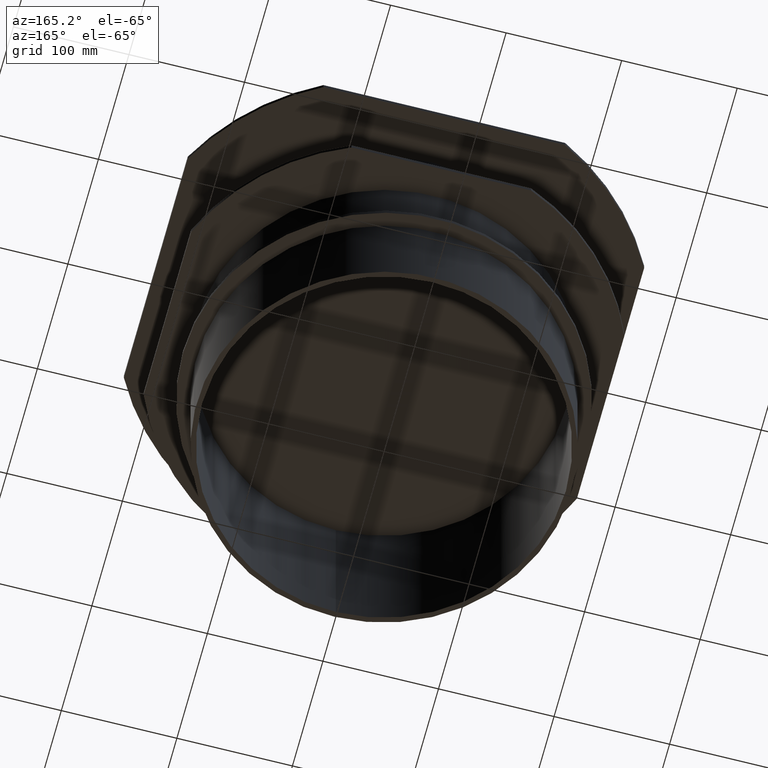
[diagram: clean part render]
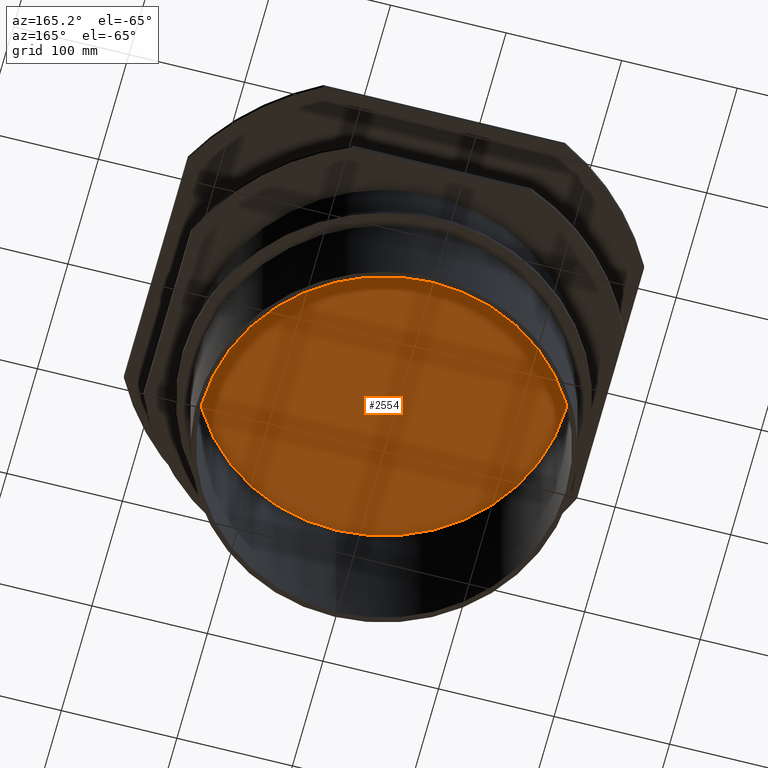
[diagram: same view with one face highlighted and labeled with its STEP entity id]
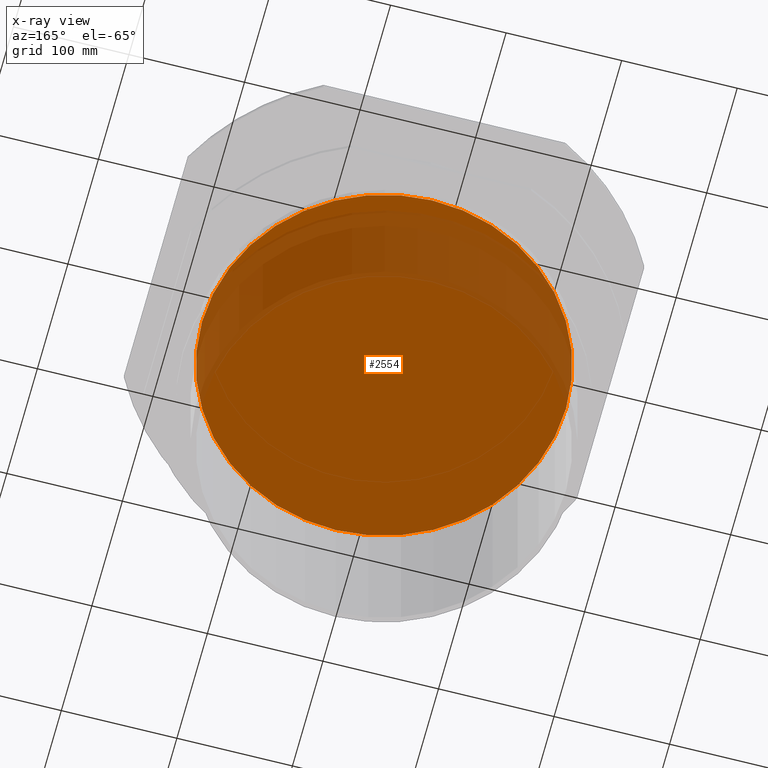
[diagram: x-ray of the same camera — body ghosted, the highlighted face saturated]
A machine part, auxiliary view. The second image highlights one B-rep face of the part: STEP entity #2554.
The next image is the same camera in x-ray: the body ghosted, the highlighted face saturated — about 26% of this face is hidden behind the body in this view.
In plain terms, the highlighted planar face has unit normal (-0, 0, -1).
Its self-contained STEP definition (entity closure, byte-faithful):
#175=FACE_OUTER_BOUND('',#324,.T.);
#324=EDGE_LOOP('',(#1721));
#493=CIRCLE('',#2733,157.5);
#1080=VERTEX_POINT('',#3466);
#1336=EDGE_CURVE('',#1080,#1080,#493,.T.);
#1721=ORIENTED_EDGE('',*,*,#1336,.T.);
#2455=PLANE('',#2732);
#2554=ADVANCED_FACE('',(#175),#2455,.T.);
#2732=AXIS2_PLACEMENT_3D('',#3465,#2900,#2901);
#2733=AXIS2_PLACEMENT_3D('',#3467,#2902,#2903);
#2900=DIRECTION('center_axis',(-2.22044604925031E-16,4.93038065763132E-32,
-1.));
#2901=DIRECTION('ref_axis',(1.,-2.22044604925031E-16,-2.22044604925031E-16));
#2902=DIRECTION('center_axis',(-2.22044604925031E-16,4.93038065763132E-32,
-1.));
#2903=DIRECTION('ref_axis',(2.22044604925031E-16,1.,0.));
#3465=CARTESIAN_POINT('Origin',(1.63202784619898E-14,73.,-88.));
#3466=CARTESIAN_POINT('',(-5.41491900598007E-14,-157.5,-88.));
#3467=CARTESIAN_POINT('Origin',(1.11022302462516E-16,-2.46519032881566E-32,
-88.));